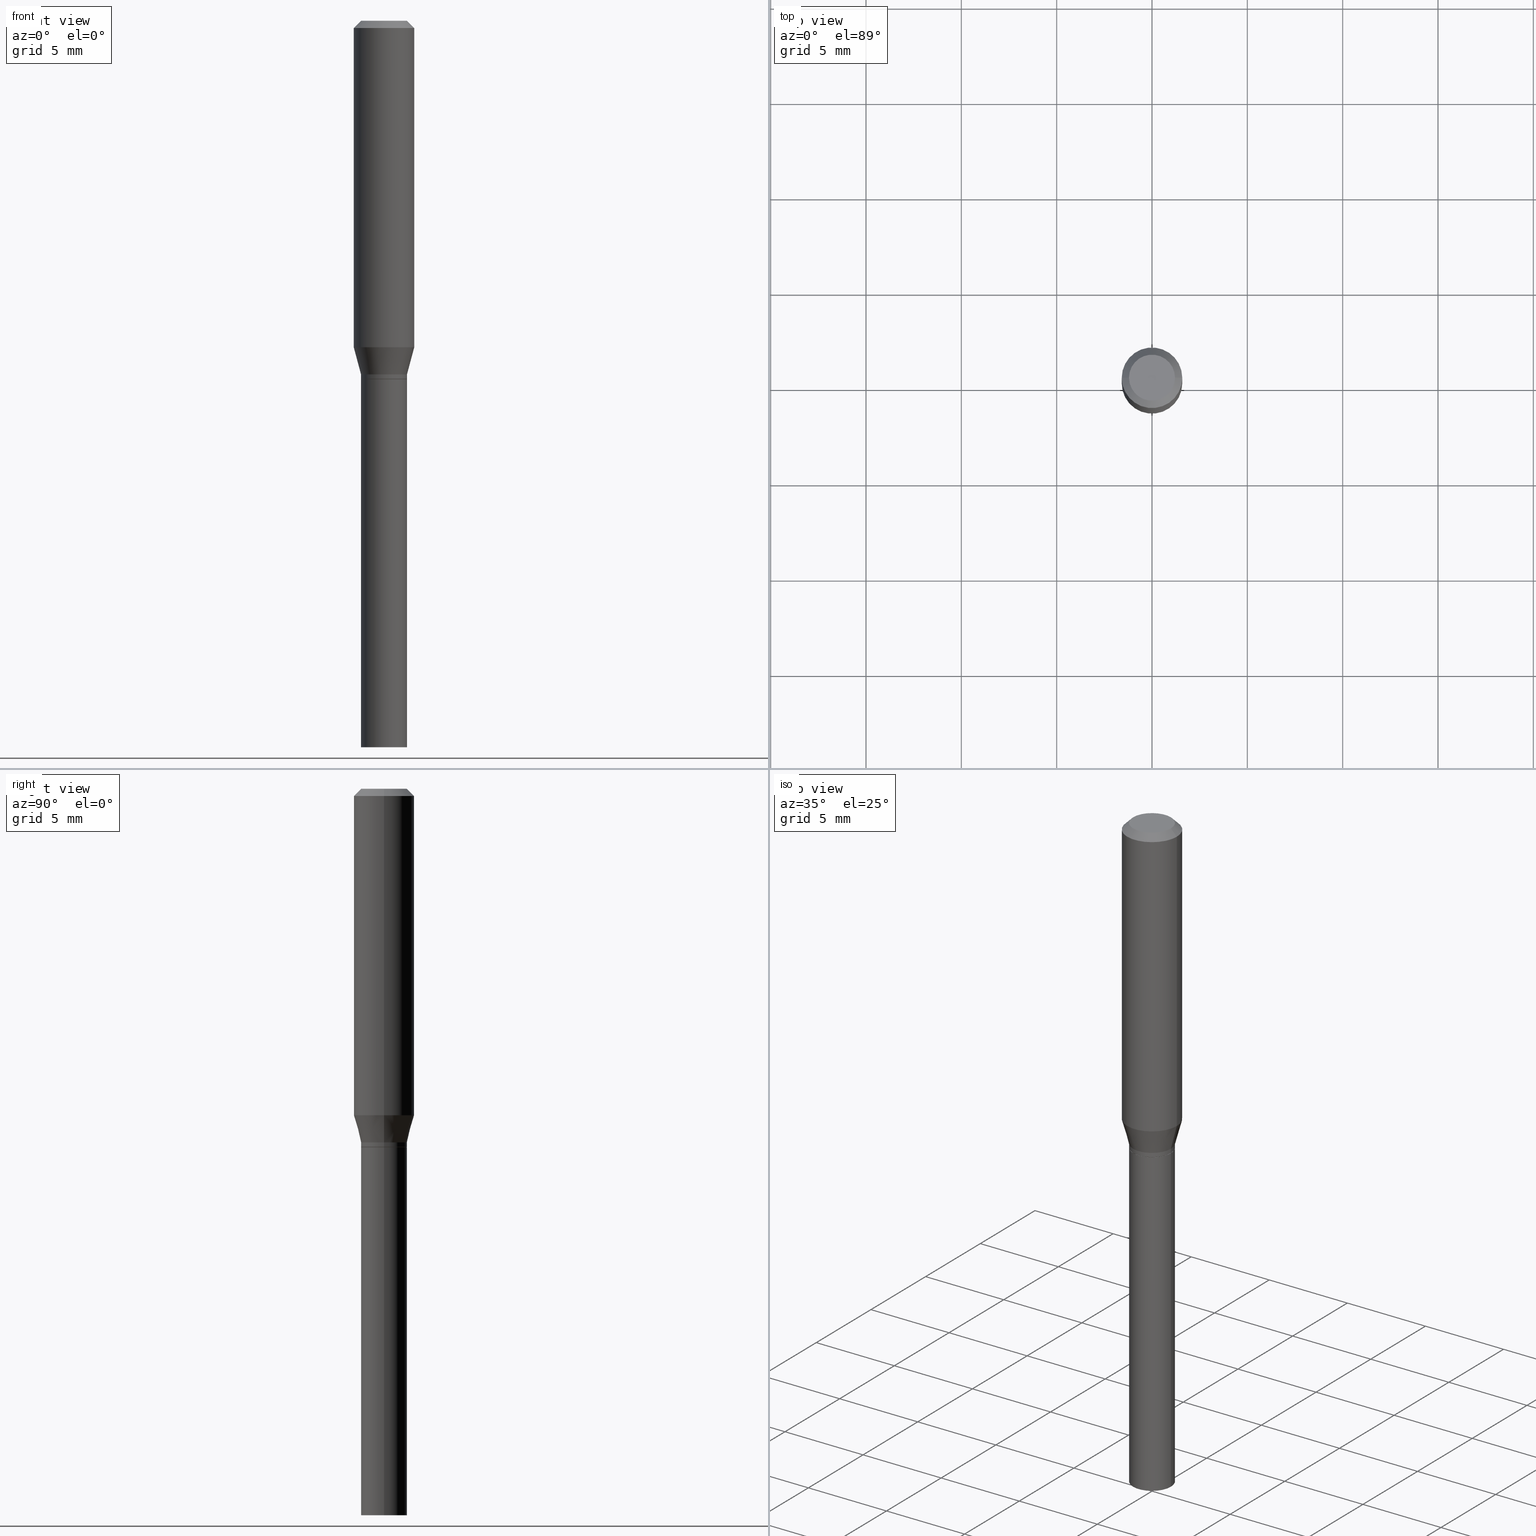
[diagram: canonical four-view strip — front | top / right | iso, engineering-drawing reading convention]
A machine part, canonical four-view strip (front | top / right | iso — engineering-drawing reading convention). The complete STEP part file that produces these views, byte-faithful:
ISO-10303-21;
HEADER;
FILE_DESCRIPTION (( 'STEP AP203' ),
    '1' );
FILE_NAME ('04232.STEP',
    '2024-03-14T17:25:45',
    ( '' ),
    ( '' ),
    'SwSTEP 2.0',
    'SolidWorks 2023',
    '' );
FILE_SCHEMA (( 'CONFIG_CONTROL_DESIGN' ));
ENDSEC;

DATA;
#1 = APPROVAL ( #18, 'UNSPECIFIED' ) ;
#2 = DIRECTION ( 'NONE',  ( -0.2588190451025207950, 5.211531920934546309E-15, 0.9659258262890682012 ) ) ;
#3 = DIRECTION ( 'NONE',  ( 1.000000000000000000, -6.982962677686267499E-15, 4.876176775795935793E-29 ) ) ;
#4 = APPLICATION_PROTOCOL_DEFINITION ( 'international standard', 'config_control_design', 1994, #437 ) ;
#5 = LOCAL_TIME ( 13, 25, 45.00000000000000000, #158 ) ;
#6 = FACE_OUTER_BOUND ( 'NONE', #312, .T. ) ;
#7 = VECTOR ( 'NONE', #396, 39.37007874015748143 ) ;
#8 = MECHANICAL_CONTEXT ( 'NONE', #437, 'mechanical' ) ;
#9 = PERSON_AND_ORGANIZATION_ROLE ( 'classification_officer' ) ;
#10 = PERSON_AND_ORGANIZATION ( #43, #459 ) ;
#11 = CLOSED_SHELL ( 'NONE', ( #38, #157, #401, #340 ) ) ;
#12 = DIRECTION ( 'NONE',  ( -2.445468806185136597E-29, 3.491481338843145583E-15, 1.000000000000000000 ) ) ;
#13 = DIMENSIONAL_EXPONENTS ( 1.000000000000000000, 0.000000000000000000, 0.000000000000000000, 0.000000000000000000, 0.000000000000000000, 0.000000000000000000, 0.000000000000000000 ) ;
#14 = VERTEX_POINT ( 'NONE', #316 ) ;
#15 = EDGE_CURVE ( 'NONE', #301, #352, #243, .T. ) ;
#16 = COORDINATED_UNIVERSAL_TIME_OFFSET ( 5, 0, .BEHIND. ) ;
#17 = ORIENTED_EDGE ( 'NONE', *, *, #411, .T. ) ;
#18 = APPROVAL_STATUS ( 'not_yet_approved' ) ;
#19 = CC_DESIGN_PERSON_AND_ORGANIZATION_ASSIGNMENT ( #443, #46, ( #37 ) ) ;
#20 = VERTEX_POINT ( 'NONE', #185 ) ;
#21 = DIRECTION ( 'NONE',  ( 1.000000000000000000, -6.982962677686263555E-15, 0.000000000000000000 ) ) ;
#22 = EDGE_CURVE ( 'NONE', #337, #63, #40, .T. ) ;
#23 = EDGE_LOOP ( 'NONE', ( #169, #101, #45, #262 ) ) ;
#24 = CARTESIAN_POINT ( 'NONE',  ( 0.04699999999999999317, -2.911895436595182338E-15, -0.7400000000000002132 ) ) ;
#25 = FACE_OUTER_BOUND ( 'NONE', #23, .T. ) ;
#26 = CONICAL_SURFACE ( 'NONE', #219, 0.06250000000000000000, 0.7853981633974457255 ) ;
#27 = CARTESIAN_POINT ( 'NONE',  ( 1.785192228515149917E-29, -2.548781377355496973E-15, -0.7300000000000000933 ) ) ;
#28 = EDGE_LOOP ( 'NONE', ( #251, #310, #230, #336 ) ) ;
#29 = EDGE_LOOP ( 'NONE', ( #176, #366, #91, #375 ) ) ;
#30 = CARTESIAN_POINT ( 'NONE',  ( 0.04699999999999999317, -2.911895436595182338E-15, -0.7400000000000002132 ) ) ;
#31 = ORIENTED_EDGE ( 'NONE', *, *, #223, .T. ) ;
#32 = DIRECTION ( 'NONE',  ( 1.000000000000000000, -6.982962677686261977E-15, 0.000000000000000000 ) ) ;
#33 =( CONVERSION_BASED_UNIT ( 'INCH', #114 ) LENGTH_UNIT ( ) NAMED_UNIT ( #13 ) );
#34 = ADVANCED_FACE ( 'NONE', ( #110 ), #300, .T. ) ;
#35 = DIRECTION ( 'NONE',  ( 0.7071067811865656694, -2.468850131082446387E-15, 0.7071067811865294761 ) ) ;
#36 = CARTESIAN_POINT ( 'NONE',  ( -0.06250000000000000000, 3.840629472727444916E-16, -0.01499999999999999944 ) ) ;
#37 = PRODUCT_DEFINITION_FORMATION_WITH_SPECIFIED_SOURCE ( 'ANY', '', #272, .NOT_KNOWN. ) ;
#38 = ADVANCED_FACE ( 'NONE', ( #404 ), #47, .T. ) ;
#39 =( NAMED_UNIT ( * ) SI_UNIT ( $, .STERADIAN. ) SOLID_ANGLE_UNIT ( ) );
#40 = CIRCLE ( 'NONE', #104, 0.04749999999999999362 ) ;
#41 = AXIS2_PLACEMENT_3D ( 'NONE', #72, #359, #289 ) ;
#42 = APPROVAL_ROLE ( '' ) ;
#43 = PERSON ( 'UNSPECIFIED', 'UNSPECIFIED', 'UNSPECIFIED', ('UNSPECIFIED'), ('UNSPECIFIED'), ('UNSPECIFIED') ) ;
#44 = DATE_TIME_ROLE ( 'classification_date' ) ;
#45 = ORIENTED_EDGE ( 'NONE', *, *, #153, .F. ) ;
#46 = PERSON_AND_ORGANIZATION_ROLE ( 'design_supplier' ) ;
#47 = CYLINDRICAL_SURFACE ( 'NONE', #211, 0.04749999999999999362 ) ;
#48 = ADVANCED_FACE ( 'NONE', ( #73 ), #84, .F. ) ;
#49 = COORDINATED_UNIVERSAL_TIME_OFFSET ( 5, 0, .BEHIND. ) ;
#50 = CIRCLE ( 'NONE', #458, 0.04750000000000007688 ) ;
#51 = EDGE_LOOP ( 'NONE', ( #62, #92, #380, #132 ) ) ;
#52 = EDGE_CURVE ( 'NONE', #455, #20, #198, .T. ) ;
#53 = APPROVAL_DATE_TIME ( #125, #350 ) ;
#54 = CARTESIAN_POINT ( 'NONE',  ( 0.000000000000000000, 0.000000000000000000, 0.000000000000000000 ) ) ;
#55 = EDGE_LOOP ( 'NONE', ( #269, #453, #107, #57 ) ) ;
#56 = FACE_OUTER_BOUND ( 'NONE', #51, .T. ) ;
#57 = ORIENTED_EDGE ( 'NONE', *, *, #166, .F. ) ;
#58 = DIRECTION ( 'NONE',  ( 0.2588190451025207950, 1.565188264969625912E-15, 0.9659258262890682012 ) ) ;
#59 = DIRECTION ( 'NONE',  ( -2.445468806185136597E-29, 3.491481338843145583E-15, 1.000000000000000000 ) ) ;
#60 = ORIENTED_EDGE ( 'NONE', *, *, #333, .F. ) ;
#61 = CARTESIAN_POINT ( 'NONE',  ( 3.668203209277705088E-31, -5.237222008264718399E-17, -0.01499999999999999944 ) ) ;
#62 = ORIENTED_EDGE ( 'NONE', *, *, #140, .F. ) ;
#63 = VERTEX_POINT ( 'NONE', #408 ) ;
#64 = CARTESIAN_POINT ( 'NONE',  ( 0.04749999999999999362, -3.316907271900976589E-16, 2.316183968503069081E-30 ) ) ;
#65 = CARTESIAN_POINT ( 'NONE',  ( -0.04750000000000005607, -2.244442650588458442E-15, -0.7395000000000001572 ) ) ;
#66 = CYLINDRICAL_SURFACE ( 'NONE', #318, 0.06250000000000000000 ) ;
#67 = LOCAL_TIME ( 13, 25, 45.00000000000000000, #16 ) ;
#68 = VECTOR ( 'NONE', #2, 39.37007874015748854 ) ;
#69 = EDGE_CURVE ( 'NONE', #14, #341, #314, .T. ) ;
#70 = DIRECTION ( 'NONE',  ( -2.445468806185136597E-29, 3.491481338843145583E-15, 1.000000000000000000 ) ) ;
#71 = CARTESIAN_POINT ( 'NONE',  ( 0.04749999999999999362, -2.915386917934026134E-15, -0.7400000000000002132 ) ) ;
#72 = CARTESIAN_POINT ( 'NONE',  ( 0.000000000000000000, 0.000000000000000000, 0.000000000000000000 ) ) ;
#73 = FACE_OUTER_BOUND ( 'NONE', #167, .T. ) ;
#74 = CARTESIAN_POINT ( 'NONE',  ( 0.04750000000000005607, -2.913641177264604236E-15, -0.7395000000000001572 ) ) ;
#75 = LOCAL_TIME ( 13, 25, 45.00000000000000000, #440 ) ;
#76 = EDGE_CURVE ( 'NONE', #277, #14, #335, .T. ) ;
#77 = CIRCLE ( 'NONE', #432, 0.04749999999999999362 ) ;
#78 = CARTESIAN_POINT ( 'NONE',  ( 3.668203209277704895E-29, -5.237222008264718177E-15, -1.500000000000000222 ) ) ;
#79 = DIRECTION ( 'NONE',  ( 2.445468806185136597E-29, -3.491481338843145583E-15, -1.000000000000000000 ) ) ;
#80 = DATE_AND_TIME ( #306, #67 ) ;
#81 = CIRCLE ( 'NONE', #386, 0.06250000000000000000 ) ;
#82 = CC_DESIGN_DATE_AND_TIME_ASSIGNMENT ( #303, #231, ( #450 ) ) ;
#83 = CALENDAR_DATE ( 2024, 14, 3 ) ;
#84 = PLANE ( 'NONE',  #398 ) ;
#85 = ORIENTED_EDGE ( 'NONE', *, *, #52, .T. ) ;
#86 = PERSON_AND_ORGANIZATION ( #43, #459 ) ;
#87 = ORIENTED_EDGE ( 'NONE', *, *, #76, .F. ) ;
#88 = AXIS2_PLACEMENT_3D ( 'NONE', #206, #334, #452 ) ;
#89 = LOCAL_TIME ( 13, 25, 45.00000000000000000, #365 ) ;
#90 = CALENDAR_DATE ( 2024, 14, 3 ) ;
#91 = ORIENTED_EDGE ( 'NONE', *, *, #170, .F. ) ;
#92 = ORIENTED_EDGE ( 'NONE', *, *, #361, .T. ) ;
#93 = EDGE_CURVE ( 'NONE', #96, #352, #295, .T. ) ;
#94 = CARTESIAN_POINT ( 'NONE',  ( 3.576687321579069994E-29, -5.368277968210015545E-15, -1.500000000000000222 ) ) ;
#95 = DIRECTION ( 'NONE',  ( 1.000000000000000000, -6.982962677686270655E-15, 0.000000000000000000 ) ) ;
#96 = VERTEX_POINT ( 'NONE', #203 ) ;
#97 = VECTOR ( 'NONE', #256, 39.37007874015748143 ) ;
#98 = EDGE_LOOP ( 'NONE', ( #60, #276, #155, #205 ) ) ;
#99 = DIRECTION ( 'NONE',  ( 1.000000000000000000, -6.982962677686270655E-15, 0.000000000000000000 ) ) ;
#100 = DIRECTION ( 'NONE',  ( -2.445468806185136597E-29, 3.491481338843145583E-15, 1.000000000000000000 ) ) ;
#101 = ORIENTED_EDGE ( 'NONE', *, *, #69, .T. ) ;
#102 = CC_DESIGN_PERSON_AND_ORGANIZATION_ASSIGNMENT ( #373, #338, ( #272 ) ) ;
#103 = CARTESIAN_POINT ( 'NONE',  ( -0.06250000000000000000, -1.909236381251816647E-15, -0.6740192378864672262 ) ) ;
#104 = AXIS2_PLACEMENT_3D ( 'NONE', #287, #427, #291 ) ;
#105 = APPROVAL_PERSON_ORGANIZATION ( #199, #350, #42 ) ;
#106 = CARTESIAN_POINT ( 'NONE',  ( -0.04749999999999999362, -3.572951300018275906E-15, -0.7400000000000002132 ) ) ;
#107 = ORIENTED_EDGE ( 'NONE', *, *, #357, .F. ) ;
#108 = DIRECTION ( 'NONE',  ( 1.000000000000000000, -6.982962677686270655E-15, 0.000000000000000000 ) ) ;
#109 = FACE_OUTER_BOUND ( 'NONE', #234, .T. ) ;
#110 = FACE_OUTER_BOUND ( 'NONE', #409, .T. ) ;
#111 = DIRECTION ( 'NONE',  ( -2.445468806185136597E-29, 3.491481338843145583E-15, 1.000000000000000000 ) ) ;
#112 = CARTESIAN_POINT ( 'NONE',  ( 0.04750000000000007688, -2.880472104545595273E-15, -0.7300000000000000933 ) ) ;
#113 = MANIFOLD_SOLID_BREP ( 'Body-Move/Copy2[2]', #250 ) ;
#114 = LENGTH_MEASURE_WITH_UNIT ( LENGTH_MEASURE( 0.02539999999999999897 ), #146 );
#115 = AXIS2_PLACEMENT_3D ( 'NONE', #216, #144, #391 ) ;
#116 = AXIS2_PLACEMENT_3D ( 'NONE', #392, #433, #439 ) ;
#117 = CARTESIAN_POINT ( 'NONE',  ( 0.000000000000000000, 0.000000000000000000, 0.000000000000000000 ) ) ;
#118 = DIRECTION ( 'NONE',  ( -0.7071067811865456854, 2.468850131082237733E-15, -0.7071067811865493491 ) ) ;
#119 = EDGE_CURVE ( 'NONE', #63, #344, #265, .T. ) ;
#120 = PERSON_AND_ORGANIZATION_ROLE ( 'creator' ) ;
#121 = VECTOR ( 'NONE', #118, 39.37007874015748143 ) ;
#122 = DIRECTION ( 'NONE',  ( 1.000000000000000000, -6.982962677686267499E-15, 4.876176775795935793E-29 ) ) ;
#123 = EDGE_LOOP ( 'NONE', ( #87, #214 ) ) ;
#124 = ORIENTED_EDGE ( 'NONE', *, *, #166, .T. ) ;
#125 = DATE_AND_TIME ( #161, #362 ) ;
#126 = ORIENTED_EDGE ( 'NONE', *, *, #438, .T. ) ;
#127 = CC_DESIGN_SECURITY_CLASSIFICATION ( #397, ( #37 ) ) ;
#128 = APPROVAL_DATE_TIME ( #80, #1 ) ;
#129 = FACE_OUTER_BOUND ( 'NONE', #369, .T. ) ;
#130 = ORIENTED_EDGE ( 'NONE', *, *, #403, .F. ) ;
#131 = CARTESIAN_POINT ( 'NONE',  ( -0.04749999999999999362, 3.375077994860475429E-16, -2.336494167871079910E-30 ) ) ;
#132 = ORIENTED_EDGE ( 'NONE', *, *, #187, .F. ) ;
#133 = ORIENTED_EDGE ( 'NONE', *, *, #331, .F. ) ;
#134 = CARTESIAN_POINT ( 'NONE',  ( -0.06250000000000000000, -7.587596957422007521E-16, -0.01499999999999999944 ) ) ;
#135 = ORIENTED_EDGE ( 'NONE', *, *, #69, .F. ) ;
#136 = FACE_OUTER_BOUND ( 'NONE', #201, .T. ) ;
#137 = CIRCLE ( 'NONE', #446, 0.04749999999999999362 ) ;
#138 = APPLICATION_CONTEXT ( 'configuration controlled 3d designs of mechanical parts and assemblies' ) ;
#139 = CARTESIAN_POINT ( 'NONE',  ( -1.926388536342670348E-45, 2.750372284034196662E-31, 7.877379304411503798E-17 ) ) ;
#140 = EDGE_CURVE ( 'NONE', #341, #208, #162, .T. ) ;
#141 = CARTESIAN_POINT ( 'NONE',  ( 1.809646916577001463E-29, -2.583696190743928228E-15, -0.7400000000000002132 ) ) ;
#142 = DIRECTION ( 'NONE',  ( -2.445468806185136597E-29, 3.491481338843145583E-15, 1.000000000000000000 ) ) ;
#143 = CARTESIAN_POINT ( 'NONE',  ( 1.785192228515149917E-29, -2.548781377355496973E-15, -0.7300000000000000933 ) ) ;
#144 = DIRECTION ( 'NONE',  ( -2.445468806185136597E-29, 3.491481338843145583E-15, 1.000000000000000000 ) ) ;
#145 = CARTESIAN_POINT ( 'NONE',  ( 0.04749999999999999362, -5.568912735454815688E-15, -1.500000000000000222 ) ) ;
#146 =( LENGTH_UNIT ( ) NAMED_UNIT ( * ) SI_UNIT ( $, .METRE. ) );
#147 = DIRECTION ( 'NONE',  ( -2.445468806185136597E-29, 3.491481338843145583E-15, 1.000000000000000000 ) ) ;
#148 = AXIS2_PLACEMENT_3D ( 'NONE', #285, #345, #108 ) ;
#149 = ADVANCED_FACE ( 'NONE', ( #56 ), #374, .T. ) ;
#150 = CIRCLE ( 'NONE', #415, 0.04749999999999999362 ) ;
#151 = DIRECTION ( 'NONE',  ( 1.000000000000000000, 0.000000000000000000, 0.000000000000000000 ) ) ;
#152 = PERSON_AND_ORGANIZATION_ROLE ( 'creator' ) ;
#153 = EDGE_CURVE ( 'NONE', #463, #341, #197, .T. ) ;
#154 = AXIS2_PLACEMENT_3D ( 'NONE', #286, #399, #151 ) ;
#155 = ORIENTED_EDGE ( 'NONE', *, *, #444, .T. ) ;
#156 = AXIS2_PLACEMENT_3D ( 'NONE', #94, #420, #320 ) ;
#157 = ADVANCED_FACE ( 'NONE', ( #129 ), #412, .F. ) ;
#158 = COORDINATED_UNIVERSAL_TIME_OFFSET ( 5, 0, .BEHIND. ) ;
#159 = ORIENTED_EDGE ( 'NONE', *, *, #361, .F. ) ;
#160 = CARTESIAN_POINT ( 'NONE',  ( -0.04699999999999999317, -2.249741104936680844E-15, -0.7400000000000002132 ) ) ;
#161 = CALENDAR_DATE ( 2024, 14, 3 ) ;
#162 = LINE ( 'NONE', #376, #385 ) ;
#163 = ORIENTED_EDGE ( 'NONE', *, *, #22, .F. ) ;
#164 = CC_DESIGN_APPROVAL ( #350, ( #450 ) ) ;
#165 = DIRECTION ( 'NONE',  ( -2.445468806185136597E-29, 3.491481338843145583E-15, 1.000000000000000000 ) ) ;
#166 = EDGE_CURVE ( 'NONE', #337, #275, #217, .T. ) ;
#167 = EDGE_LOOP ( 'NONE', ( #242, #339 ) ) ;
#168 = FACE_OUTER_BOUND ( 'NONE', #98, .T. ) ;
#169 = ORIENTED_EDGE ( 'NONE', *, *, #76, .T. ) ;
#170 = EDGE_CURVE ( 'NONE', #455, #208, #232, .T. ) ;
#171 = DIRECTION ( 'NONE',  ( -2.445468806185136877E-29, 3.491481338843145188E-15, 1.000000000000000000 ) ) ;
#172 = AXIS2_PLACEMENT_3D ( 'NONE', #27, #59, #95 ) ;
#173 = DIRECTION ( 'NONE',  ( -2.445468806185136597E-29, 3.491481338843145583E-15, 1.000000000000000000 ) ) ;
#174 = CARTESIAN_POINT ( 'NONE',  ( 1.809646916577001463E-29, -2.583696190743928228E-15, -0.7400000000000002132 ) ) ;
#175 = ORIENTED_EDGE ( 'NONE', *, *, #438, .F. ) ;
#176 = ORIENTED_EDGE ( 'NONE', *, *, #153, .T. ) ;
#177 = DIRECTION ( 'NONE',  ( 1.000000000000000000, -6.982962677686273021E-15, 0.000000000000000000 ) ) ;
#178 = ORIENTED_EDGE ( 'NONE', *, *, #119, .F. ) ;
#179 = FACE_OUTER_BOUND ( 'NONE', #239, .T. ) ;
#180 = CARTESIAN_POINT ( 'NONE',  ( 0.000000000000000000, 0.000000000000000000, 0.000000000000000000 ) ) ;
#181 = EDGE_CURVE ( 'NONE', #382, #451, #137, .T. ) ;
#182 = DIRECTION ( 'NONE',  ( -2.445468806185136597E-29, 3.491481338843145583E-15, 1.000000000000000000 ) ) ;
#183 = CONICAL_SURFACE ( 'NONE', #267, 0.06250000000000000000, 0.7853981633974457255 ) ;
#184 = DIRECTION ( 'NONE',  ( -2.445468806185136597E-29, 3.491481338843145583E-15, 1.000000000000000000 ) ) ;
#185 = CARTESIAN_POINT ( 'NONE',  ( 0.06250000000000000000, -2.789760758457271721E-15, -0.6740192378864672262 ) ) ;
#186 = CARTESIAN_POINT ( 'NONE',  ( 3.668203209277705088E-31, -5.237222008264718399E-17, -0.01499999999999999944 ) ) ;
#187 = EDGE_CURVE ( 'NONE', #208, #455, #50, .T. ) ;
#188 = DIRECTION ( 'NONE',  ( 1.000000000000000000, -6.982962677686266711E-15, 0.000000000000000000 ) ) ;
#189 = AXIS2_PLACEMENT_3D ( 'NONE', #288, #182, #325 ) ;
#190 = AXIS2_PLACEMENT_3D ( 'NONE', #174, #165, #311 ) ;
#191 = APPROVAL_STATUS ( 'not_yet_approved' ) ;
#192 = PERSON_AND_ORGANIZATION ( #43, #459 ) ;
#193 = EDGE_CURVE ( 'NONE', #277, #463, #246, .T. ) ;
#194 = EDGE_LOOP ( 'NONE', ( #263, #454, #332, #405 ) ) ;
#195 = AXIS2_PLACEMENT_3D ( 'NONE', #441, #307, #448 ) ;
#196 = ORIENTED_EDGE ( 'NONE', *, *, #241, .F. ) ;
#197 = CIRCLE ( 'NONE', #195, 0.04750000000000005607 ) ;
#198 = LINE ( 'NONE', #377, #236 ) ;
#199 = PERSON_AND_ORGANIZATION ( #43, #459 ) ;
#200 = DIRECTION ( 'NONE',  ( 1.000000000000000000, -6.982962677686267499E-15, 4.876176775795935793E-29 ) ) ;
#201 = EDGE_LOOP ( 'NONE', ( #196, #445, #85, #133 ) ) ;
#202 = PRODUCT_DEFINITION_SHAPE ( 'NONE', 'NONE',  #450 ) ;
#203 = CARTESIAN_POINT ( 'NONE',  ( 0.06250000000000000000, -4.888073874380388472E-16, -0.01499999999999999944 ) ) ;
#204 = ADVANCED_FACE ( 'NONE', ( #25 ), #270, .T. ) ;
#205 = ORIENTED_EDGE ( 'NONE', *, *, #423, .T. ) ;
#206 = CARTESIAN_POINT ( 'NONE',  ( 1.809646916577001463E-29, -2.583696190743928228E-15, -0.7400000000000002132 ) ) ;
#207 = CARTESIAN_POINT ( 'NONE',  ( 1.808424182173908942E-29, -2.581950450074506725E-15, -0.7395000000000001572 ) ) ;
#208 = VERTEX_POINT ( 'NONE', #281 ) ;
#209 = CARTESIAN_POINT ( 'NONE',  ( 0.000000000000000000, 0.000000000000000000, 0.000000000000000000 ) ) ;
#210 = LINE ( 'NONE', #384, #68 ) ;
#211 = AXIS2_PLACEMENT_3D ( 'NONE', #117, #360, #122 ) ;
#212 =( GEOMETRIC_REPRESENTATION_CONTEXT ( 3 ) GLOBAL_UNCERTAINTY_ASSIGNED_CONTEXT ( ( #383 ) ) GLOBAL_UNIT_ASSIGNED_CONTEXT ( ( #33, #426, #39 ) ) REPRESENTATION_CONTEXT ( 'NONE', 'WORKASPACE' ) );
#213 = DIRECTION ( 'NONE',  ( -2.445468806185136597E-29, 3.491481338843145583E-15, 1.000000000000000000 ) ) ;
#214 = ORIENTED_EDGE ( 'NONE', *, *, #223, .F. ) ;
#215 = CARTESIAN_POINT ( 'NONE',  ( -1.926388536342670348E-45, 2.750372284034196662E-31, 7.877379304411503798E-17 ) ) ;
#216 = CARTESIAN_POINT ( 'NONE',  ( 1.648293021020034731E-29, -2.353325591101879657E-15, -0.6740192378864672262 ) ) ;
#217 = LINE ( 'NONE', #64, #349 ) ;
#218 = LINE ( 'NONE', #36, #121 ) ;
#219 = AXIS2_PLACEMENT_3D ( 'NONE', #315, #79, #465 ) ;
#220 = LINE ( 'NONE', #356, #97 ) ;
#221 = AXIS2_PLACEMENT_3D ( 'NONE', #54, #273, #200 ) ;
#222 = CYLINDRICAL_SURFACE ( 'NONE', #41, 0.04750000000000006301 ) ;
#223 = EDGE_CURVE ( 'NONE', #14, #277, #329, .T. ) ;
#224 = DIRECTION ( 'NONE',  ( 1.000000000000000000, -6.982962677686261977E-15, 0.000000000000000000 ) ) ;
#225 = APPROVAL_ROLE ( '' ) ;
#226 = AXIS2_PLACEMENT_3D ( 'NONE', #78, #147, #224 ) ;
#227 = ORIENTED_EDGE ( 'NONE', *, *, #15, .T. ) ;
#228 = DATE_AND_TIME ( #83, #89 ) ;
#229 = CARTESIAN_POINT ( 'NONE',  ( 3.316907271900976096E-16, 0.04749999999999999362, -1.264584670729918775E-16 ) ) ;
#230 = ORIENTED_EDGE ( 'NONE', *, *, #93, .T. ) ;
#231 = DATE_TIME_ROLE ( 'creation_date' ) ;
#232 = CIRCLE ( 'NONE', #189, 0.04750000000000007688 ) ;
#233 = AXIS2_PLACEMENT_3D ( 'NONE', #207, #343, #21 ) ;
#234 = EDGE_LOOP ( 'NONE', ( #178, #406, #124, #416 ) ) ;
#235 = EDGE_CURVE ( 'NONE', #451, #382, #150, .T. ) ;
#236 = VECTOR ( 'NONE', #58, 39.37007874015748854 ) ;
#237 = APPROVAL_ROLE ( '' ) ;
#238 = DIRECTION ( 'NONE',  ( -2.445468806185136877E-29, 3.491481338843145188E-15, 1.000000000000000000 ) ) ;
#239 = EDGE_LOOP ( 'NONE', ( #17, #227, #245, #175 ) ) ;
#240 = ORIENTED_EDGE ( 'NONE', *, *, #321, .T. ) ;
#241 = EDGE_CURVE ( 'NONE', #208, #301, #210, .T. ) ;
#242 = ORIENTED_EDGE ( 'NONE', *, *, #181, .T. ) ;
#243 = LINE ( 'NONE', #430, #7 ) ;
#244 = CARTESIAN_POINT ( 'NONE',  ( 1.809646916577001463E-29, -2.583696190743928228E-15, -0.7400000000000002132 ) ) ;
#245 = ORIENTED_EDGE ( 'NONE', *, *, #93, .F. ) ;
#246 = LINE ( 'NONE', #30, #319 ) ;
#247 = CONICAL_SURFACE ( 'NONE', #407, 0.04699999999999999317, 0.7853981633974739252 ) ;
#248 = ADVANCED_FACE ( 'NONE', ( #136 ), #308, .T. ) ;
#249 = DIRECTION ( 'NONE',  ( -2.438088387897960049E-29, 3.491481338843145188E-15, 1.000000000000000000 ) ) ;
#250 = CLOSED_SHELL ( 'NONE', ( #431, #204, #456, #252, #346, #248, #34, #368, #48, #327, #283, #149 ) ) ;
#251 = ORIENTED_EDGE ( 'NONE', *, *, #235, .F. ) ;
#252 = ADVANCED_FACE ( 'NONE', ( #179 ), #66, .T. ) ;
#253 = LINE ( 'NONE', #457, #449 ) ;
#254 = FACE_OUTER_BOUND ( 'NONE', #29, .T. ) ;
#255 = DIRECTION ( 'NONE',  ( 1.000000000000000000, -6.982962677686261977E-15, 0.000000000000000000 ) ) ;
#256 = DIRECTION ( 'NONE',  ( -2.445468806185136877E-29, 3.491481338843145188E-15, 1.000000000000000000 ) ) ;
#257 = CARTESIAN_POINT ( 'NONE',  ( 3.316907271901156548E-16, 0.04749999999999741235, -0.7400000000000003242 ) ) ;
#258 = APPROVAL_PERSON_ORGANIZATION ( #192, #290, #225 ) ;
#259 = CYLINDRICAL_SURFACE ( 'NONE', #299, 0.04749999999999999362 ) ;
#260 = FACE_OUTER_BOUND ( 'NONE', #28, .T. ) ;
#261 = APPROVAL_DATE_TIME ( #367, #290 ) ;
#262 = ORIENTED_EDGE ( 'NONE', *, *, #193, .F. ) ;
#263 = ORIENTED_EDGE ( 'NONE', *, *, #170, .T. ) ;
#264 = PERSON_AND_ORGANIZATION ( #43, #459 ) ;
#265 = LINE ( 'NONE', #131, #266 ) ;
#266 = VECTOR ( 'NONE', #304, 39.37007874015748143 ) ;
#267 = AXIS2_PLACEMENT_3D ( 'NONE', #294, #326, #395 ) ;
#268 = CC_DESIGN_PERSON_AND_ORGANIZATION_ASSIGNMENT ( #264, #120, ( #37 ) ) ;
#269 = ORIENTED_EDGE ( 'NONE', *, *, #22, .T. ) ;
#270 = CONICAL_SURFACE ( 'NONE', #435, 0.04699999999999999317, 0.7853981633974739252 ) ;
#271 = SECURITY_CLASSIFICATION_LEVEL ( 'unclassified' ) ;
#272 = PRODUCT ( '04232', '04232', '', ( #8 ) ) ;
#273 = DIRECTION ( 'NONE',  ( -2.445468806185136597E-29, 3.491481338843145583E-15, 1.000000000000000000 ) ) ;
#274 = FACE_OUTER_BOUND ( 'NONE', #194, .T. ) ;
#275 = VERTEX_POINT ( 'NONE', #71 ) ;
#276 = ORIENTED_EDGE ( 'NONE', *, *, #181, .F. ) ;
#277 = VERTEX_POINT ( 'NONE', #24 ) ;
#278 = CIRCLE ( 'NONE', #226, 0.04749999999999999362 ) ;
#279 = AXIS2_PLACEMENT_3D ( 'NONE', #143, #173, #425 ) ;
#280 = FACE_OUTER_BOUND ( 'NONE', #442, .T. ) ;
#281 = CARTESIAN_POINT ( 'NONE',  ( -0.04750000000000007688, -2.060254979560632669E-15, -0.7300000000000000933 ) ) ;
#282 = DIRECTION ( 'NONE',  ( 1.000000000000000000, -6.982962677686267499E-15, 4.884662768193073002E-29 ) ) ;
#283 = ADVANCED_FACE ( 'NONE', ( #280 ), #247, .T. ) ;
#284 = CIRCLE ( 'NONE', #233, 0.04750000000000005607 ) ;
#285 = CARTESIAN_POINT ( 'NONE',  ( 1.648293021020034731E-29, -2.353325591101879657E-15, -0.6740192378864672262 ) ) ;
#286 = CARTESIAN_POINT ( 'NONE',  ( 0.000000000000000000, 0.000000000000000000, 0.000000000000000000 ) ) ;
#287 = CARTESIAN_POINT ( 'NONE',  ( 3.668203209277704895E-29, -5.237222008264718177E-15, -1.500000000000000222 ) ) ;
#288 = CARTESIAN_POINT ( 'NONE',  ( 1.785192228515149917E-29, -2.548781377355496973E-15, -0.7300000000000000933 ) ) ;
#289 = DIRECTION ( 'NONE',  ( 1.000000000000000000, -6.982962677686267499E-15, 4.876176775795935793E-29 ) ) ;
#290 = APPROVAL ( #191, 'UNSPECIFIED' ) ;
#291 = DIRECTION ( 'NONE',  ( 1.000000000000000000, -6.982962677686261977E-15, 0.000000000000000000 ) ) ;
#292 = AXIS2_PLACEMENT_3D ( 'NONE', #462, #249, #464 ) ;
#293 = CC_DESIGN_APPROVAL ( #1, ( #37 ) ) ;
#294 = CARTESIAN_POINT ( 'NONE',  ( 3.668203209277705088E-31, -5.237222008264718399E-17, -0.01499999999999999944 ) ) ;
#295 = CIRCLE ( 'NONE', #460, 0.06250000000000000000 ) ;
#296 = PLANE ( 'NONE',  #309 ) ;
#297 = DIRECTION ( 'NONE',  ( -2.445468806185136597E-29, 3.491481338843145583E-15, 1.000000000000000000 ) ) ;
#298 = CALENDAR_DATE ( 2024, 14, 3 ) ;
#299 = AXIS2_PLACEMENT_3D ( 'NONE', #180, #184, #3 ) ;
#300 = CYLINDRICAL_SURFACE ( 'NONE', #116, 0.06250000000000000000 ) ;
#301 = VERTEX_POINT ( 'NONE', #103 ) ;
#302 = DIRECTION ( 'NONE',  ( 1.000000000000000000, -6.982962677686266711E-15, 0.000000000000000000 ) ) ;
#303 = DATE_AND_TIME ( #90, #5 ) ;
#304 = DIRECTION ( 'NONE',  ( -2.445468806185136877E-29, 3.491481338843145188E-15, 1.000000000000000000 ) ) ;
#305 = EDGE_CURVE ( 'NONE', #463, #455, #351, .T. ) ;
#306 = CALENDAR_DATE ( 2024, 14, 3 ) ;
#307 = DIRECTION ( 'NONE',  ( -2.445468806185136597E-29, 3.491481338843145583E-15, 1.000000000000000000 ) ) ;
#308 = CONICAL_SURFACE ( 'NONE', #279, 0.04750000000000007688, 0.2617993877991495189 ) ;
#309 = AXIS2_PLACEMENT_3D ( 'NONE', #257, #313, #393 ) ;
#310 = ORIENTED_EDGE ( 'NONE', *, *, #333, .T. ) ;
#311 = DIRECTION ( 'NONE',  ( 1.000000000000000000, -6.982962677686273021E-15, 0.000000000000000000 ) ) ;
#312 = EDGE_LOOP ( 'NONE', ( #323, #240 ) ) ;
#313 = DIRECTION ( 'NONE',  ( 2.438088387897960049E-29, -3.491481338843145188E-15, -1.000000000000000000 ) ) ;
#314 = LINE ( 'NONE', #160, #371 ) ;
#315 = CARTESIAN_POINT ( 'NONE',  ( 3.668203209277705088E-31, -5.237222008264718399E-17, -0.01499999999999999944 ) ) ;
#316 = CARTESIAN_POINT ( 'NONE',  ( -0.04699999999999999317, -2.247091877762570038E-15, -0.7400000000000002132 ) ) ;
#317 = DIRECTION ( 'NONE',  ( -2.445468806185136597E-29, 3.491481338843145583E-15, 1.000000000000000000 ) ) ;
#318 = AXIS2_PLACEMENT_3D ( 'NONE', #209, #142, #381 ) ;
#319 = VECTOR ( 'NONE', #35, 39.37007874015748143 ) ;
#320 = DIRECTION ( 'NONE',  ( 1.000000000000000000, -6.982962677686265922E-15, 4.876176775795935793E-29 ) ) ;
#321 = EDGE_CURVE ( 'NONE', #344, #275, #77, .T. ) ;
#322 = PLANE ( 'NONE',  #292 ) ;
#323 = ORIENTED_EDGE ( 'NONE', *, *, #357, .T. ) ;
#324 = CARTESIAN_POINT ( 'NONE',  ( 1.809646916577001463E-29, -2.583696190743928228E-15, -0.7400000000000002132 ) ) ;
#325 = DIRECTION ( 'NONE',  ( 1.000000000000000000, -6.982962677686270655E-15, 0.000000000000000000 ) ) ;
#326 = DIRECTION ( 'NONE',  ( 2.445468806185136597E-29, -3.491481338843145583E-15, -1.000000000000000000 ) ) ;
#327 = ADVANCED_FACE ( 'NONE', ( #394 ), #322, .F. ) ;
#328 = CARTESIAN_POINT ( 'NONE',  ( -0.04749999999999999362, 3.578768372314211492E-16, 7.877379304411263442E-17 ) ) ;
#329 = CIRCLE ( 'NONE', #358, 0.04699999999999999317 ) ;
#330 = APPROVAL_STATUS ( 'not_yet_approved' ) ;
#331 = EDGE_CURVE ( 'NONE', #301, #20, #348, .T. ) ;
#332 = ORIENTED_EDGE ( 'NONE', *, *, #411, .F. ) ;
#333 = EDGE_CURVE ( 'NONE', #451, #96, #253, .T. ) ;
#334 = DIRECTION ( 'NONE',  ( -2.445468806185136597E-29, 3.491481338843145583E-15, 1.000000000000000000 ) ) ;
#335 = CIRCLE ( 'NONE', #88, 0.04699999999999999317 ) ;
#336 = ORIENTED_EDGE ( 'NONE', *, *, #444, .F. ) ;
#337 = VERTEX_POINT ( 'NONE', #145 ) ;
#338 = PERSON_AND_ORGANIZATION_ROLE ( 'design_owner' ) ;
#339 = ORIENTED_EDGE ( 'NONE', *, *, #235, .T. ) ;
#340 = ADVANCED_FACE ( 'NONE', ( #6 ), #296, .F. ) ;
#341 = VERTEX_POINT ( 'NONE', #65 ) ;
#342 = ORIENTED_EDGE ( 'NONE', *, *, #193, .T. ) ;
#343 = DIRECTION ( 'NONE',  ( -2.445468806185136597E-29, 3.491481338843145583E-15, 1.000000000000000000 ) ) ;
#344 = VERTEX_POINT ( 'NONE', #106 ) ;
#345 = DIRECTION ( 'NONE',  ( -2.445468806185136597E-29, 3.491481338843145583E-15, 1.000000000000000000 ) ) ;
#346 = ADVANCED_FACE ( 'NONE', ( #274 ), #422, .T. ) ;
#347 = DIRECTION ( 'NONE',  ( 0.7071067811865456854, -7.319954787623249734E-15, -0.7071067811865493491 ) ) ;
#348 = CIRCLE ( 'NONE', #148, 0.06250000000000000000 ) ;
#349 = VECTOR ( 'NONE', #461, 39.37007874015748143 ) ;
#350 = APPROVAL ( #330, 'UNSPECIFIED' ) ;
#351 = LINE ( 'NONE', #428, #370 ) ;
#352 = VERTEX_POINT ( 'NONE', #134 ) ;
#353 = ORIENTED_EDGE ( 'NONE', *, *, #331, .T. ) ;
#354 = DIRECTION ( 'NONE',  ( 1.000000000000000000, -6.982962677686267499E-15, 4.884662768193073002E-29 ) ) ;
#355 = DIRECTION ( 'NONE',  ( -2.445468806185136597E-29, 3.491481338843145583E-15, 1.000000000000000000 ) ) ;
#356 = CARTESIAN_POINT ( 'NONE',  ( 0.06250000000000000000, -4.364351673553916694E-16, 3.047610484872459871E-30 ) ) ;
#357 = EDGE_CURVE ( 'NONE', #275, #344, #466, .T. ) ;
#358 = AXIS2_PLACEMENT_3D ( 'NONE', #419, #111, #390 ) ;
#359 = DIRECTION ( 'NONE',  ( -2.445468806185136597E-29, 3.491481338843145583E-15, 1.000000000000000000 ) ) ;
#360 = DIRECTION ( 'NONE',  ( -2.445468806185136597E-29, 3.491481338843145583E-15, 1.000000000000000000 ) ) ;
#361 = EDGE_CURVE ( 'NONE', #341, #463, #284, .T. ) ;
#362 = LOCAL_TIME ( 13, 25, 45.00000000000000000, #49 ) ;
#363 = CC_DESIGN_DATE_AND_TIME_ASSIGNMENT ( #228, #44, ( #397 ) ) ;
#364 = APPLICATION_PROTOCOL_DEFINITION ( 'international standard', 'config_control_design', 1994, #138 ) ;
#365 = COORDINATED_UNIVERSAL_TIME_OFFSET ( 5, 0, .BEHIND. ) ;
#366 = ORIENTED_EDGE ( 'NONE', *, *, #140, .T. ) ;
#367 = DATE_AND_TIME ( #298, #75 ) ;
#368 = ADVANCED_FACE ( 'NONE', ( #168 ), #26, .T. ) ;
#369 = EDGE_LOOP ( 'NONE', ( #163, #130 ) ) ;
#370 = VECTOR ( 'NONE', #171, 39.37007874015748143 ) ;
#371 = VECTOR ( 'NONE', #413, 39.37007874015748143 ) ;
#372 = ORIENTED_EDGE ( 'NONE', *, *, #423, .F. ) ;
#373 = PERSON_AND_ORGANIZATION ( #43, #459 ) ;
#374 = CYLINDRICAL_SURFACE ( 'NONE', #221, 0.04750000000000006301 ) ;
#375 = ORIENTED_EDGE ( 'NONE', *, *, #305, .F. ) ;
#376 = CARTESIAN_POINT ( 'NONE',  ( -0.04750000000000006301, 3.375077994860480360E-16, -2.336494167871083413E-30 ) ) ;
#377 = CARTESIAN_POINT ( 'NONE',  ( 0.04750000000000007688, -2.880472104545595273E-15, -0.7300000000000000933 ) ) ;
#378 = CC_DESIGN_PERSON_AND_ORGANIZATION_ASSIGNMENT ( #86, #9, ( #397 ) ) ;
#379 = CIRCLE ( 'NONE', #115, 0.06250000000000000000 ) ;
#380 = ORIENTED_EDGE ( 'NONE', *, *, #305, .T. ) ;
#381 = DIRECTION ( 'NONE',  ( 1.000000000000000000, -6.982962677686266711E-15, 4.876176775795935793E-29 ) ) ;
#382 = VERTEX_POINT ( 'NONE', #328 ) ;
#383 = UNCERTAINTY_MEASURE_WITH_UNIT (LENGTH_MEASURE( 1.000000000000000082E-05 ), #33, 'distance_accuracy_value', 'NONE');
#384 = CARTESIAN_POINT ( 'NONE',  ( -0.04750000000000007688, -2.211273577869448691E-15, -0.7300000000000000933 ) ) ;
#385 = VECTOR ( 'NONE', #238, 39.37007874015748143 ) ;
#386 = AXIS2_PLACEMENT_3D ( 'NONE', #186, #297, #188 ) ;
#387 = DIRECTION ( 'NONE',  ( -2.445468806185136597E-29, 3.491481338843145583E-15, 1.000000000000000000 ) ) ;
#388 = DIRECTION ( 'NONE',  ( -1.000000000000000000, 6.982962677686265922E-15, -4.876176775795935793E-29 ) ) ;
#389 = DIRECTION ( 'NONE',  ( 2.438088387897960049E-29, -3.491481338843145188E-15, -1.000000000000000000 ) ) ;
#390 = DIRECTION ( 'NONE',  ( 1.000000000000000000, -6.982962677686261977E-15, 0.000000000000000000 ) ) ;
#391 = DIRECTION ( 'NONE',  ( 1.000000000000000000, -6.982962677686270655E-15, 0.000000000000000000 ) ) ;
#392 = CARTESIAN_POINT ( 'NONE',  ( 0.000000000000000000, 0.000000000000000000, 0.000000000000000000 ) ) ;
#393 = DIRECTION ( 'NONE',  ( -1.000000000000000000, 6.982962677686265922E-15, -4.876176775795935793E-29 ) ) ;
#394 = FACE_OUTER_BOUND ( 'NONE', #123, .T. ) ;
#395 = DIRECTION ( 'NONE',  ( -1.000000000000000000, 6.982962677686266711E-15, 0.000000000000000000 ) ) ;
#396 = DIRECTION ( 'NONE',  ( -2.445468806185136877E-29, 3.491481338843145188E-15, 1.000000000000000000 ) ) ;
#397 = SECURITY_CLASSIFICATION ( '', '', #271 ) ;
#398 = AXIS2_PLACEMENT_3D ( 'NONE', #229, #389, #388 ) ;
#399 = DIRECTION ( 'NONE',  ( 0.000000000000000000, 0.000000000000000000, 1.000000000000000000 ) ) ;
#400 = APPROVAL_PERSON_ORGANIZATION ( #447, #1, #237 ) ;
#401 = ADVANCED_FACE ( 'NONE', ( #109 ), #259, .T. ) ;
#402 = SHAPE_DEFINITION_REPRESENTATION ( #202, #424 ) ;
#403 = EDGE_CURVE ( 'NONE', #63, #337, #278, .T. ) ;
#404 = FACE_OUTER_BOUND ( 'NONE', #55, .T. ) ;
#405 = ORIENTED_EDGE ( 'NONE', *, *, #52, .F. ) ;
#406 = ORIENTED_EDGE ( 'NONE', *, *, #403, .T. ) ;
#407 = AXIS2_PLACEMENT_3D ( 'NONE', #324, #213, #255 ) ;
#408 = CARTESIAN_POINT ( 'NONE',  ( -0.04749999999999999362, -3.572951300018275906E-15, -1.500000000000000222 ) ) ;
#409 = EDGE_LOOP ( 'NONE', ( #421, #353, #126, #372 ) ) ;
#410 = DESIGN_CONTEXT ( 'detailed design', #138, 'design' ) ;
#411 = EDGE_CURVE ( 'NONE', #20, #301, #379, .T. ) ;
#412 = PLANE ( 'NONE',  #156 ) ;
#413 = DIRECTION ( 'NONE',  ( -0.7071067811865656694, 7.493145998870420424E-15, 0.7071067811865294761 ) ) ;
#414 = MANIFOLD_SOLID_BREP ( 'Body-Move/Copy2[1]', #11 ) ;
#415 = AXIS2_PLACEMENT_3D ( 'NONE', #215, #100, #282 ) ;
#416 = ORIENTED_EDGE ( 'NONE', *, *, #321, .F. ) ;
#417 = CARTESIAN_POINT ( 'NONE',  ( 1.785192228515149917E-29, -2.548781377355496973E-15, -0.7300000000000000933 ) ) ;
#418 = PRODUCT_RELATED_PRODUCT_CATEGORY ( 'detail', '', ( #272 ) ) ;
#419 = CARTESIAN_POINT ( 'NONE',  ( 1.809646916577001463E-29, -2.583696190743928228E-15, -0.7400000000000002132 ) ) ;
#420 = DIRECTION ( 'NONE',  ( -2.438088387897960049E-29, 3.491481338843145188E-15, 1.000000000000000000 ) ) ;
#421 = ORIENTED_EDGE ( 'NONE', *, *, #15, .F. ) ;
#422 = CONICAL_SURFACE ( 'NONE', #172, 0.04750000000000007688, 0.2617993877991495189 ) ;
#423 = EDGE_CURVE ( 'NONE', #352, #96, #81, .T. ) ;
#424 = ADVANCED_BREP_SHAPE_REPRESENTATION ( '04232', ( #414, #113, #154 ), #212 ) ;
#425 = DIRECTION ( 'NONE',  ( 1.000000000000000000, -6.982962677686270655E-15, 0.000000000000000000 ) ) ;
#426 =( NAMED_UNIT ( * ) PLANE_ANGLE_UNIT ( ) SI_UNIT ( $, .RADIAN. ) );
#427 = DIRECTION ( 'NONE',  ( -2.445468806185136597E-29, 3.491481338843145583E-15, 1.000000000000000000 ) ) ;
#428 = CARTESIAN_POINT ( 'NONE',  ( 0.04750000000000006301, -3.316907271900981519E-16, 2.316183968503072584E-30 ) ) ;
#429 = CARTESIAN_POINT ( 'NONE',  ( 0.04749999999999999362, -4.035134999187576651E-16, 7.877379304411762643E-17 ) ) ;
#430 = CARTESIAN_POINT ( 'NONE',  ( -0.06250000000000000000, 4.440892098500626162E-16, -3.074334431409316114E-30 ) ) ;
#431 = ADVANCED_FACE ( 'NONE', ( #254 ), #222, .T. ) ;
#432 = AXIS2_PLACEMENT_3D ( 'NONE', #244, #317, #177 ) ;
#433 = DIRECTION ( 'NONE',  ( -2.445468806185136597E-29, 3.491481338843145583E-15, 1.000000000000000000 ) ) ;
#434 = CC_DESIGN_APPROVAL ( #290, ( #397 ) ) ;
#435 = AXIS2_PLACEMENT_3D ( 'NONE', #141, #355, #32 ) ;
#436 = CC_DESIGN_PERSON_AND_ORGANIZATION_ASSIGNMENT ( #10, #152, ( #450 ) ) ;
#437 = APPLICATION_CONTEXT ( 'configuration controlled 3d designs of mechanical parts and assemblies' ) ;
#438 = EDGE_CURVE ( 'NONE', #20, #96, #220, .T. ) ;
#439 = DIRECTION ( 'NONE',  ( 1.000000000000000000, -6.982962677686266711E-15, 4.876176775795935793E-29 ) ) ;
#440 = COORDINATED_UNIVERSAL_TIME_OFFSET ( 5, 0, .BEHIND. ) ;
#441 = CARTESIAN_POINT ( 'NONE',  ( 1.808424182173908942E-29, -2.581950450074506725E-15, -0.7395000000000001572 ) ) ;
#442 = EDGE_LOOP ( 'NONE', ( #135, #31, #342, #159 ) ) ;
#443 = PERSON_AND_ORGANIZATION ( #43, #459 ) ;
#444 = EDGE_CURVE ( 'NONE', #382, #352, #218, .T. ) ;
#445 = ORIENTED_EDGE ( 'NONE', *, *, #187, .T. ) ;
#446 = AXIS2_PLACEMENT_3D ( 'NONE', #139, #387, #354 ) ;
#447 = PERSON_AND_ORGANIZATION ( #43, #459 ) ;
#448 = DIRECTION ( 'NONE',  ( 1.000000000000000000, -6.982962677686263555E-15, 0.000000000000000000 ) ) ;
#449 = VECTOR ( 'NONE', #347, 39.37007874015748143 ) ;
#450 = PRODUCT_DEFINITION ( 'UNKNOWN', '', #37, #410 ) ;
#451 = VERTEX_POINT ( 'NONE', #429 ) ;
#452 = DIRECTION ( 'NONE',  ( 1.000000000000000000, -6.982962677686261977E-15, 0.000000000000000000 ) ) ;
#453 = ORIENTED_EDGE ( 'NONE', *, *, #119, .T. ) ;
#454 = ORIENTED_EDGE ( 'NONE', *, *, #241, .T. ) ;
#455 = VERTEX_POINT ( 'NONE', #112 ) ;
#456 = ADVANCED_FACE ( 'NONE', ( #260 ), #183, .T. ) ;
#457 = CARTESIAN_POINT ( 'NONE',  ( 0.06250000000000000000, -4.811533449433679005E-16, -0.01499999999999999944 ) ) ;
#458 = AXIS2_PLACEMENT_3D ( 'NONE', #417, #70, #99 ) ;
#459 = ORGANIZATION ( 'UNSPECIFIED', 'UNSPECIFIED', '' ) ;
#460 = AXIS2_PLACEMENT_3D ( 'NONE', #61, #12, #302 ) ;
#461 = DIRECTION ( 'NONE',  ( -2.445468806185136877E-29, 3.491481338843145188E-15, 1.000000000000000000 ) ) ;
#462 = CARTESIAN_POINT ( 'NONE',  ( 1.809646916577001463E-29, -2.583696190743928228E-15, -0.7400000000000002132 ) ) ;
#463 = VERTEX_POINT ( 'NONE', #74 ) ;
#464 = DIRECTION ( 'NONE',  ( 1.000000000000000000, -6.982962677686265922E-15, 4.876176775795935793E-29 ) ) ;
#465 = DIRECTION ( 'NONE',  ( -1.000000000000000000, 6.982962677686266711E-15, 0.000000000000000000 ) ) ;
#466 = CIRCLE ( 'NONE', #190, 0.04749999999999999362 ) ;
ENDSEC;
END-ISO-10303-21;
